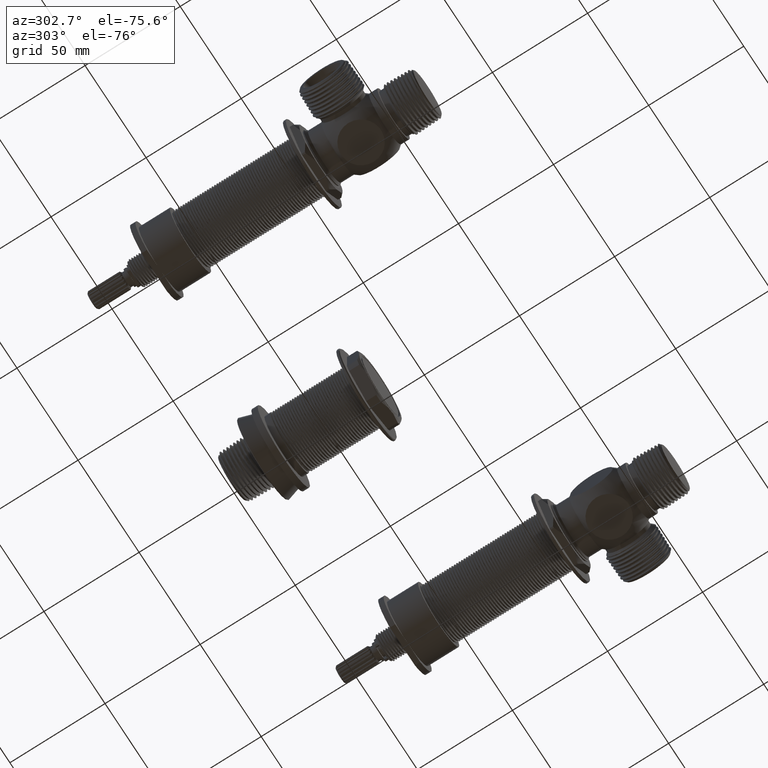
[diagram: clean part render]
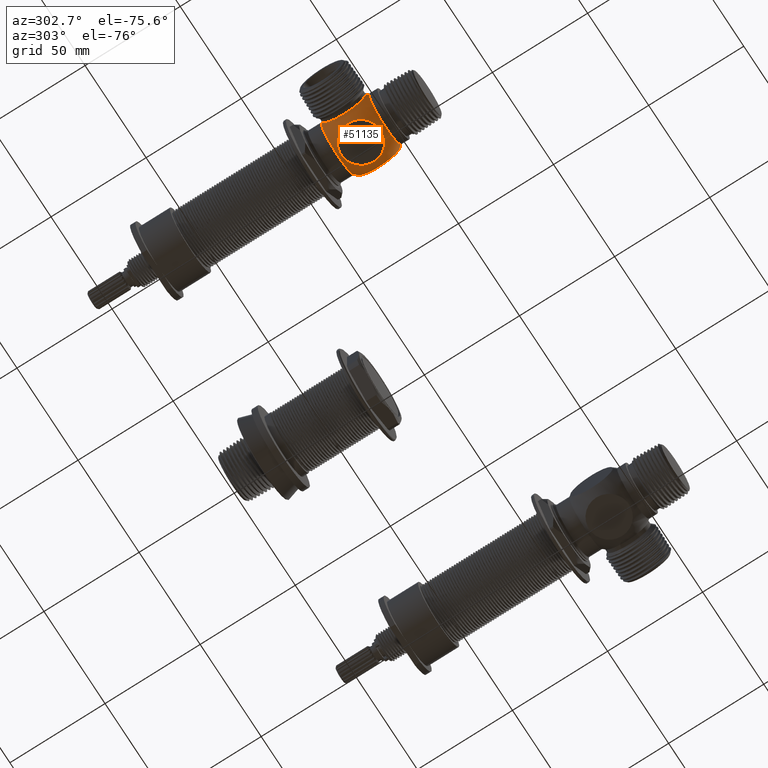
[diagram: same view with one face highlighted and labeled with its STEP entity id]
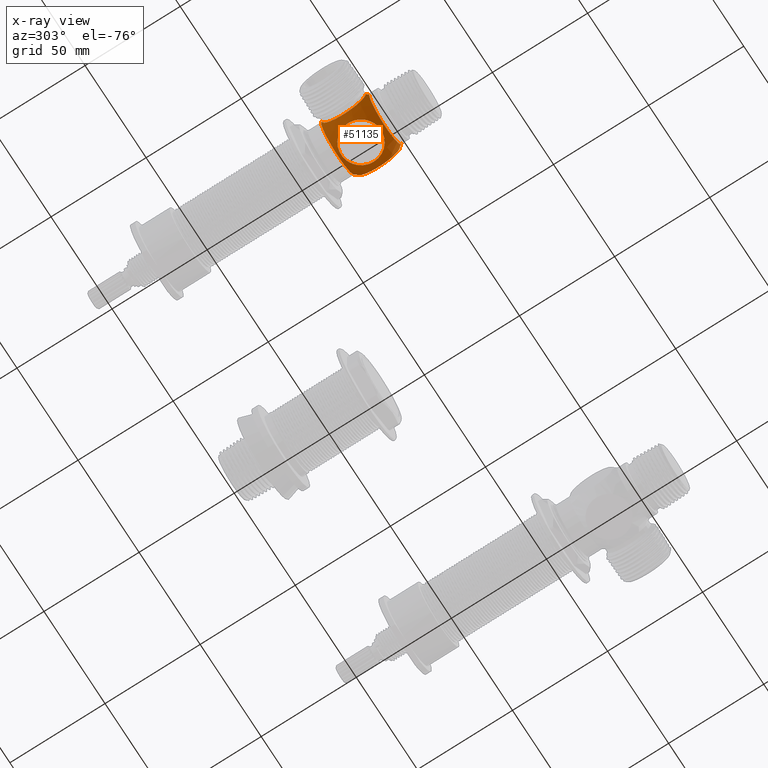
[diagram: x-ray of the same camera — body ghosted, the highlighted face saturated]
A machine part, auxiliary view. The second image highlights one B-rep face of the part: STEP entity #51135.
The next image is the same camera in x-ray: the body ghosted, the highlighted face saturated — about 0% of this face is hidden behind the body in this view.
In plain terms, the highlighted spherical surface has radius 18.3 mm.
Its self-contained STEP definition (entity closure, byte-faithful):
#17852=CARTESIAN_POINT('',(-4.E0,-2.746680551181E0,0.E0));
#17853=DIRECTION('',(0.E0,1.E0,0.E0));
#17854=DIRECTION('',(1.E0,0.E0,0.E0));
#17855=AXIS2_PLACEMENT_3D('',#17852,#17853,#17854);
#17924=CARTESIAN_POINT('',(-4.E0,-3.225027007874E0,0.E0));
#17925=DIRECTION('',(0.E0,0.E0,-1.E0));
#17926=DIRECTION('',(7.923497267762E-1,-6.100671360413E-1,0.E0));
#17927=AXIS2_PLACEMENT_3D('',#17924,#17925,#17926);
#17932=CARTESIAN_POINT('',(-3.429133858268E0,-3.225027007874E0,0.E0));
#17933=DIRECTION('',(-1.E0,0.E0,0.E0));
#17934=DIRECTION('',(0.E0,1.E0,0.E0));
#17935=AXIS2_PLACEMENT_3D('',#17932,#17933,#17934);
#17940=CARTESIAN_POINT('',(-4.E0,-3.225027007874E0,0.E0));
#17941=DIRECTION('',(0.E0,0.E0,-1.E0));
#17942=DIRECTION('',(7.477907980627E-1,6.639344262295E-1,0.E0));
#17943=AXIS2_PLACEMENT_3D('',#17940,#17941,#17942);
#17948=CARTESIAN_POINT('',(-4.E0,-3.225027007874E0,0.E0));
#17949=DIRECTION('',(0.E0,0.E0,-1.E0));
#17950=DIRECTION('',(-7.778780174546E-1,6.284153005465E-1,0.E0));
#17951=AXIS2_PLACEMENT_3D('',#17948,#17949,#17950);
#17956=CARTESIAN_POINT('',(-4.560439673993E0,-3.225027007874E0,0.E0));
#17957=DIRECTION('',(1.E0,0.E0,0.E0));
#17958=DIRECTION('',(0.E0,-9.708024860489E-1,-2.398802473763E-1));
#17959=AXIS2_PLACEMENT_3D('',#17956,#17957,#17958);
#17964=CARTESIAN_POINT('',(-4.560439673993E0,-3.225027007874E0,0.E0));
#17965=DIRECTION('',(1.E0,0.E0,0.E0));
#17966=DIRECTION('',(0.E0,-1.E0,0.E0));
#17967=AXIS2_PLACEMENT_3D('',#17964,#17965,#17966);
#17972=CARTESIAN_POINT('',(-4.E0,-3.225027007874E0,0.E0));
#17973=DIRECTION('',(0.E0,0.E0,-1.E0));
#17974=DIRECTION('',(-7.199855340765E-1,-6.939890710383E-1,0.E0));
#17975=AXIS2_PLACEMENT_3D('',#17972,#17973,#17974);
#17980=CARTESIAN_POINT('',(-4.E0,-3.225027007874E0,-5.905511811026E-1));
#17981=DIRECTION('',(0.E0,0.E0,1.E0));
#17982=DIRECTION('',(1.E0,0.E0,0.E0));
#17983=AXIS2_PLACEMENT_3D('',#17980,#17981,#17982);
#17988=CARTESIAN_POINT('',(-4.E0,-3.225027007874E0,-5.905511811026E-1));
#17989=DIRECTION('',(0.E0,0.E0,1.E0));
#17990=DIRECTION('',(-1.E0,0.E0,0.E0));
#17991=AXIS2_PLACEMENT_3D('',#17988,#17989,#17990);
#18012=CARTESIAN_POINT('',(-4.E0,-3.725027007874E0,0.E0));
#18013=DIRECTION('',(0.E0,-1.E0,0.E0));
#18014=DIRECTION('',(-1.E0,0.E0,0.E0));
#18015=AXIS2_PLACEMENT_3D('',#18012,#18013,#18014);
#30907=CARTESIAN_POINT('',(-3.461237338404E0,-2.746680551181E0,0.E0));
#30908=CARTESIAN_POINT('',(-4.538762661596E0,-2.746680551181E0,0.E0));
#30909=VERTEX_POINT('',#30907);
#30910=VERTEX_POINT('',#30908);
#30911=CARTESIAN_POINT('',(-3.429133858268E0,-3.664563566518E0,0.E0));
#30912=CARTESIAN_POINT('',(-3.429133858268E0,-2.785490449230E0,0.E0));
#30913=VERTEX_POINT('',#30911);
#30914=VERTEX_POINT('',#30912);
#30915=CARTESIAN_POINT('',(-3.481270264819E0,-3.725027007874E0,0.E0));
#30916=VERTEX_POINT('',#30915);
#30917=CARTESIAN_POINT('',(-4.560439673993E0,-2.772271102362E0,0.E0));
#30918=VERTEX_POINT('',#30917);
#30919=CARTESIAN_POINT('',(-4.560439673993E0,-3.664563566518E0,
-1.086071986152E-1));
#30920=VERTEX_POINT('',#30919);
#30921=CARTESIAN_POINT('',(-4.560439673993E0,-3.677782913386E0,0.E0));
#30922=VERTEX_POINT('',#30921);
#30923=CARTESIAN_POINT('',(-4.518729735181E0,-3.725027007874E0,0.E0));
#30924=VERTEX_POINT('',#30923);
#30925=CARTESIAN_POINT('',(-4.412710359283E0,-3.225027007874E0,
-5.905511811026E-1));
#30926=CARTESIAN_POINT('',(-3.587289640717E0,-3.225027007874E0,
-5.905511811026E-1));
#30927=VERTEX_POINT('',#30925);
#30928=VERTEX_POINT('',#30926);
#51109=CARTESIAN_POINT('',(-4.E0,-3.225027007874E0,0.E0));
#51110=DIRECTION('',(0.E0,-1.E0,0.E0));
#51111=DIRECTION('',(1.E0,0.E0,0.E0));
#51112=AXIS2_PLACEMENT_3D('',#51109,#51110,#51111);
#51113=SPHERICAL_SURFACE('',#51112,7.204724409449E-1);
#51115=ORIENTED_EDGE('',*,*,#51114,.T.);
#51116=ORIENTED_EDGE('',*,*,#51078,.F.);
#51118=ORIENTED_EDGE('',*,*,#51117,.F.);
#51119=ORIENTED_EDGE('',*,*,#51074,.F.);
#51120=ORIENTED_EDGE('',*,*,#51047,.T.);
#51121=ORIENTED_EDGE('',*,*,#51086,.F.);
#51123=ORIENTED_EDGE('',*,*,#51122,.F.);
#51125=ORIENTED_EDGE('',*,*,#51124,.F.);
#51126=ORIENTED_EDGE('',*,*,#51082,.F.);
#51127=EDGE_LOOP('',(#51115,#51116,#51118,#51119,#51120,#51121,#51123,#51125,
#51126));
#51128=FACE_OUTER_BOUND('',#51127,.F.);
#51130=ORIENTED_EDGE('',*,*,#51129,.F.);
#51132=ORIENTED_EDGE('',*,*,#51131,.F.);
#51133=EDGE_LOOP('',(#51130,#51132));
#51134=FACE_BOUND('',#51133,.F.);
#17856=CIRCLE('',#17855,5.387626615964E-1);
#17928=CIRCLE('',#17927,7.204724409449E-1);
#17936=CIRCLE('',#17935,4.395365586439E-1);
#17944=CIRCLE('',#17943,7.204724409449E-1);
#17952=CIRCLE('',#17951,7.204724409449E-1);
#17960=CIRCLE('',#17959,4.527559055118E-1);
#17968=CIRCLE('',#17967,4.527559055118E-1);
#17976=CIRCLE('',#17975,7.204724409449E-1);
#17984=CIRCLE('',#17983,4.127103592829E-1);
#17992=CIRCLE('',#17991,4.127103592829E-1);
#18016=CIRCLE('',#18015,5.187297351811E-1);
#51047=EDGE_CURVE('',#30909,#30910,#17856,.T.);
#51074=EDGE_CURVE('',#30909,#30914,#17944,.T.);
#51078=EDGE_CURVE('',#30913,#30916,#17928,.T.);
#51082=EDGE_CURVE('',#30924,#30922,#17976,.T.);
#51086=EDGE_CURVE('',#30918,#30910,#17952,.T.);
#51114=EDGE_CURVE('',#30924,#30916,#18016,.T.);
#51117=EDGE_CURVE('',#30914,#30913,#17936,.T.);
#51122=EDGE_CURVE('',#30920,#30918,#17960,.T.);
#51124=EDGE_CURVE('',#30922,#30920,#17968,.T.);
#51129=EDGE_CURVE('',#30928,#30927,#17984,.T.);
#51131=EDGE_CURVE('',#30927,#30928,#17992,.T.);
#51135=ADVANCED_FACE('',(#51128,#51134),#51113,.T.);